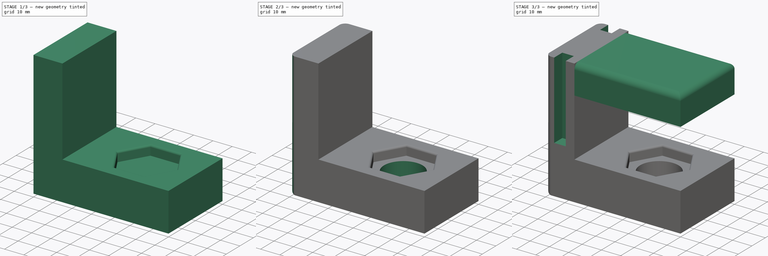
[diagram: build sequence overview — one tinted view per stage of 3, left to right]
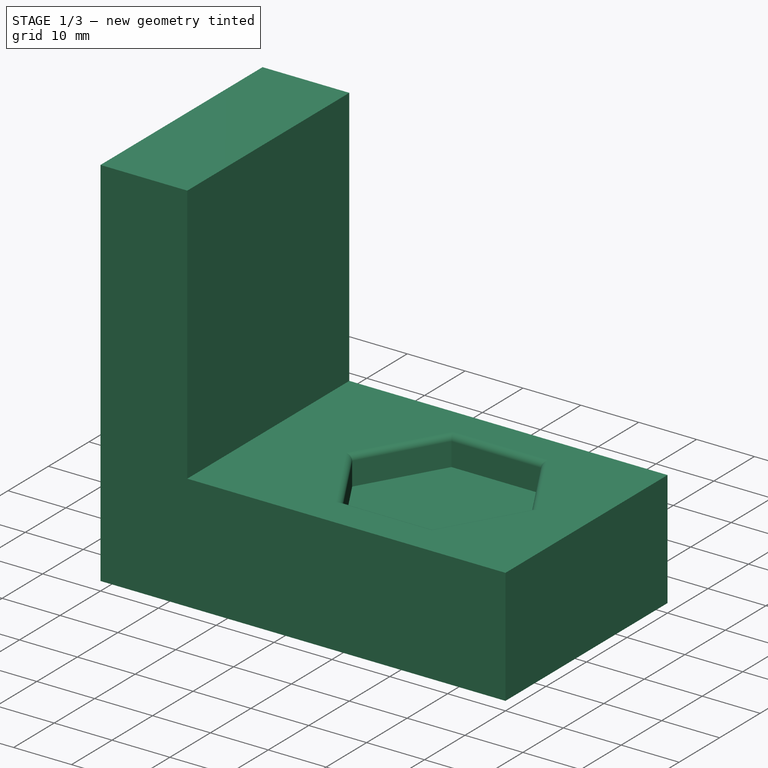
[diagram: stage 1 of 3 — iso view after this stage's code; geometry added in this stage tinted green]
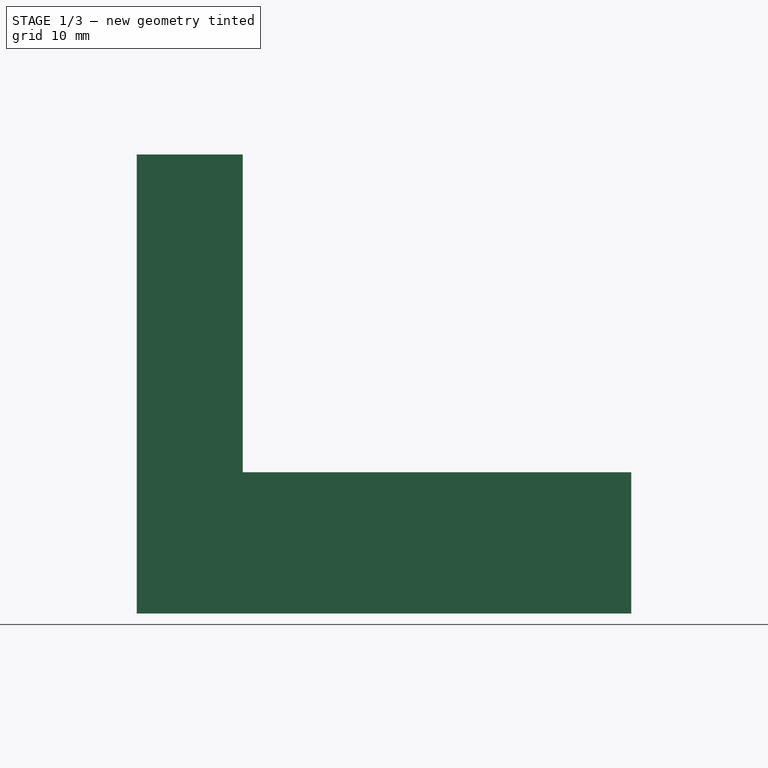
[diagram: stage 1 of 3 — front view after this stage's code; geometry added in this stage tinted green]
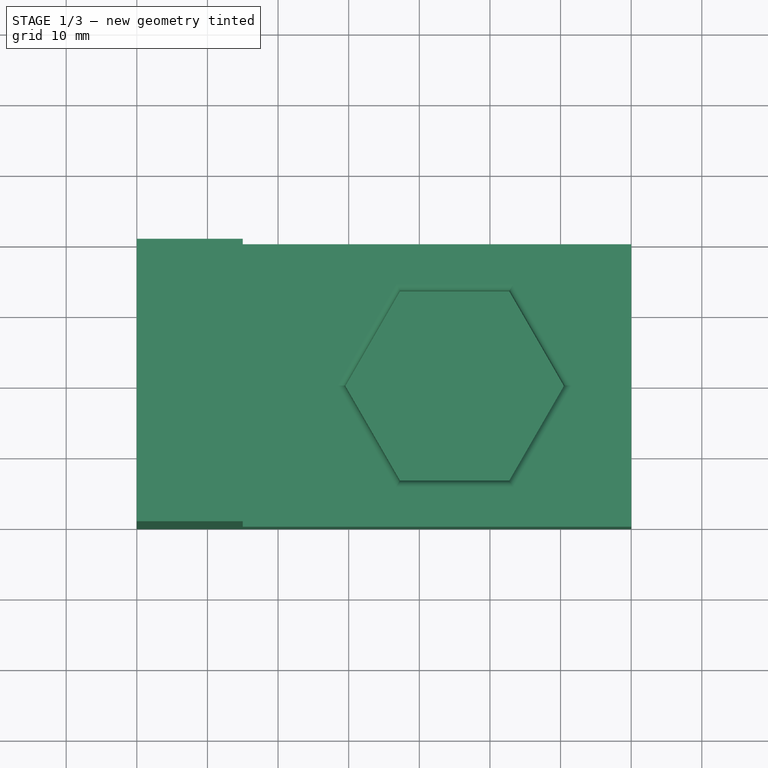
[diagram: stage 1 of 3 — top view after this stage's code; geometry added in this stage tinted green]
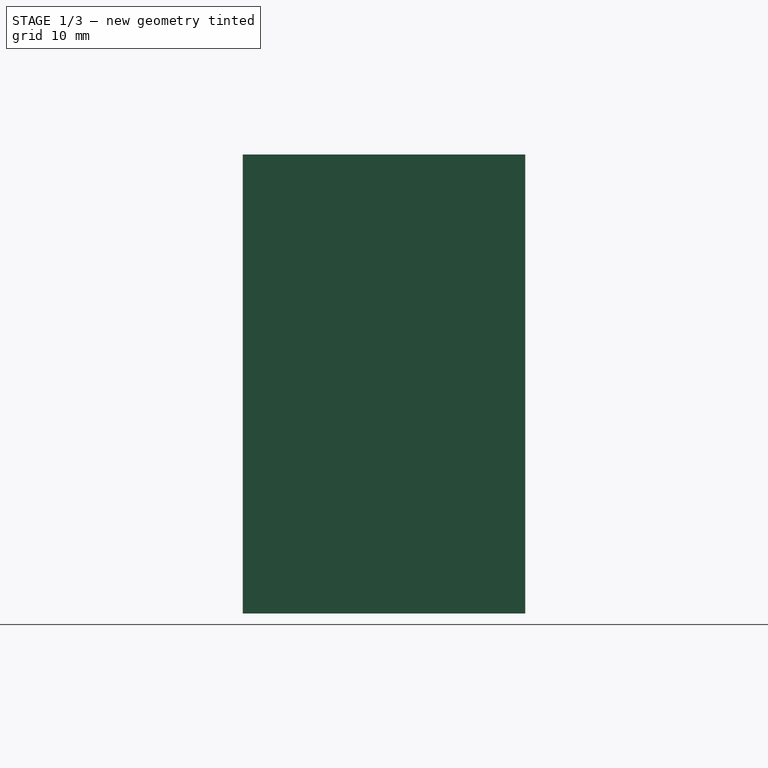
[diagram: stage 1 of 3 — right view after this stage's code; geometry added in this stage tinted green]
FCSTD DOCUMENT  (FreeCAD 1.0R39319 (Git))
Label: universal-desk-clamp
License: All rights reserved
LicenseURL: https://en.wikipedia.org/wiki/All_rights_reserved
objects: Sketcher::SketchObject×5, PartDesign::Pocket×3, PartDesign::Fillet×3, PartDesign::Pad×2, PartDesign::Body×2
note: 36 computed .brp shape members not serialized (recipe doc carries the construction recipe); baked Part::Feature solids carry a one-line shape summary decoded from their .brp

FEATURE [Sketcher::SketchObject] Sketch
  ArcFitTolerance = 1e-06
  AttachmentSupport = -> [XZ_Plane]
  FullyConstrained = false
  MakeInternals = false
  MapMode = 5
  Placement = pos=(0,0,0) rot=(1,0,0;1.5708rad)
  sketch-geometry (10):
    g0: LineSegment StartX=-1.971e-13 StartY=0 StartZ=0 EndX=70 EndY=0 EndZ=0
    g1: LineSegment StartX=70 StartY=0 StartZ=0 EndX=70 EndY=20 EndZ=0
    g2: LineSegment StartX=70 StartY=20 StartZ=0 EndX=15 EndY=20 EndZ=0
    g3: LineSegment StartX=15 StartY=20 StartZ=0 EndX=15 EndY=50 EndZ=0
    g4: LineSegment StartX=15 StartY=50 StartZ=0 EndX=15 EndY=50 EndZ=0
    g5: LineSegment StartX=15 StartY=50 StartZ=0 EndX=15 EndY=44.9999 EndZ=0
    g6: LineSegment StartX=15 StartY=65 StartZ=0 EndX=0 EndY=65 EndZ=0
    g7: LineSegment StartX=0 StartY=65 StartZ=0 EndX=-1.971e-13 EndY=0 EndZ=0
    g8: GeomPoint [constr] X=15 Y=65 Z=0
    g9: LineSegment StartX=15 StartY=65 StartZ=0 EndX=15 EndY=44.9999 EndZ=0
  constraints (27):
    c: Coincident(g-1,g0)
    c: PointOnObject(g0,g-1)
    c: Coincident(g0,g1)
    c: Vertical(g1)
    c: Coincident(g1,g2)
    c: Horizontal(g2)
    c: Coincident(g2,g3)
    c: Vertical(g3)
    c: Coincident(g3,g4)
    c: Horizontal(g4)
    c: Coincident(g4,g5)
    c: Vertical(g5)
    c: PointOnObject(g6,g-2)
    c: Horizontal(g6)
    c: Coincident(g6,g7)
    c: Coincident(g7,g0)
    c: DistanceY(g0,g1) = 20
    c: DistanceY(g4,g8) = 15
    c: DistanceY(g2,g3) = 30
    c: PointOnObject(g8,g5)
    c: PointOnObject(g8,g6)
    c: DistanceX(g0,g2) = 15
    c: DistanceX(g2,g1) = 55
    c: DistanceX(g3,g4) = 0
    c: Coincident(g9,g6)
    c: Coincident(g9,g5)
    c: Vertical(g9)
FEATURE [PartDesign::Pad] Pad
  Direction = (0,-1,2e-16)
  Length = 40
  Length2 = 10
  Placement = pos=(0,0,0) rot=(1,0,0;1.5708rad)
  Profile = -> Sketch
  ReferenceAxis = -> Sketch [N_Axis]
  Refine = true
  Suppressed = false
  Type = 0
FEATURE [Sketcher::SketchObject] Sketch004
  ArcFitTolerance = 1e-06
  AttachmentOffset = pos=(0,0,20) rot=(0,0,1;0rad)
  AttachmentSupport = -> [XY_Plane]
  FullyConstrained = true
  MakeInternals = false
  MapMode = 5
  Placement = pos=(0,0,20) rot=(0,0,1;0rad)
  sketch-geometry (11):
    g0: LineSegment [constr] StartX=0 StartY=0 StartZ=0 EndX=0 EndY=-40 EndZ=0
    g1: LineSegment [constr] StartX=0 StartY=-40 StartZ=0 EndX=70 EndY=-40 EndZ=0
    g2: LineSegment [constr] StartX=70 StartY=-40 StartZ=0 EndX=70 EndY=0 EndZ=0
    g3: LineSegment [constr] StartX=70 StartY=0 StartZ=0 EndX=0 EndY=0 EndZ=0
    g4: LineSegment StartX=29.5 StartY=-20 StartZ=0 EndX=37.25 EndY=-33.4234 EndZ=0
    g5: LineSegment StartX=37.25 StartY=-33.4234 StartZ=0 EndX=52.75 EndY=-33.4234 EndZ=0
    g6: LineSegment StartX=52.75 StartY=-33.4234 StartZ=0 EndX=60.5 EndY=-20 EndZ=0
    g7: LineSegment StartX=60.5 StartY=-20 StartZ=0 EndX=52.75 EndY=-6.57661 EndZ=0
    g8: LineSegment StartX=52.75 StartY=-6.57661 StartZ=0 EndX=37.25 EndY=-6.57661 EndZ=0
    g9: LineSegment StartX=37.25 StartY=-6.57661 StartZ=0 EndX=29.5 EndY=-20 EndZ=0
    g10: Circle [constr] CenterX=45 CenterY=-20 CenterZ=0 NormalX=0 NormalY=0 NormalZ=1 AngleXU=0 Radius=15.5
  constraints (28):
    c: Coincident(g0,g1)
    c: Coincident(g1,g2)
    c: Coincident(g2,g3)
    c: Coincident(g3,g0)
    c: Vertical(g0)
    c: Vertical(g2)
    c: Horizontal(g1)
    c: Horizontal(g3)
    c: Distance(g0,g2) = 70
    c: Distance(g1,g3) = 40
    c: Coincident(g0,g-1)
    c: Coincident(g4,g5)
    c: Coincident(g5,g6)
    c: Coincident(g6,g7)
    c: Coincident(g7,g8)
    c: Coincident(g8,g9)
    c: Coincident(g9,g4)
    c: Equal(g4, g5-g9) x5
    c: PointOnObject(g4,g10)
    c: PointOnObject(g5,g10)
    c: PointOnObject(g6,g10)
    c: PointOnObject(g7,g10)
    c: PointOnObject(g8,g10)
    c: PointOnObject(g9,g10)
    c: Radius(g10) = 15.5
    c: DistanceX(g0,g10) = 45
    c: DistanceY(g4,g0) = 20
    c: DistanceY(g10,g0) = 20
FEATURE [PartDesign::Pocket] Pocket
  BaseFeature = -> Pad
  Direction = (0,0,-1)
  Length = 5
  Length2 = 5
  Placement = pos=(0,0,0) rot=(1,0,0;1.5708rad)
  Profile = -> Sketch004
  ReferenceAxis = -> Sketch004 [N_Axis]
  Refine = true
  Suppressed = false
  Type = 0
FEATURE [PartDesign::Fillet] Fillet001
  Base = -> Pocket [Edge5,Edge6,Edge7,Edge8,Edge9,Edge10]
  BaseFeature = -> Pocket
  Placement = pos=(0,0,0) rot=(1,0,0;1.5708rad)
  Radius = 1
  Refine = true
  SupportTransform = false
  Suppressed = false
  UseAllEdges = false
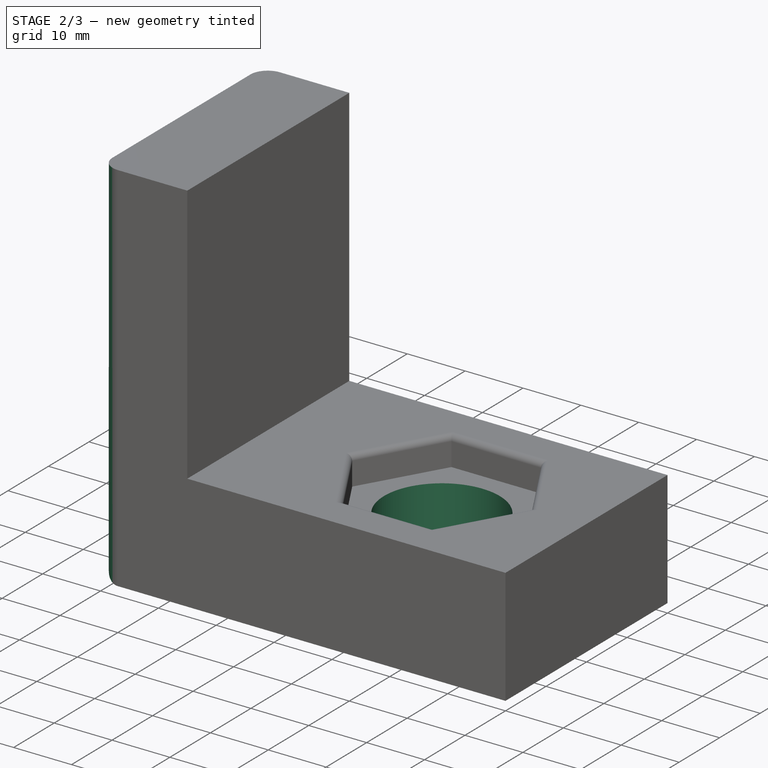
[diagram: stage 2 of 3 — iso view after this stage's code; geometry added in this stage tinted green]
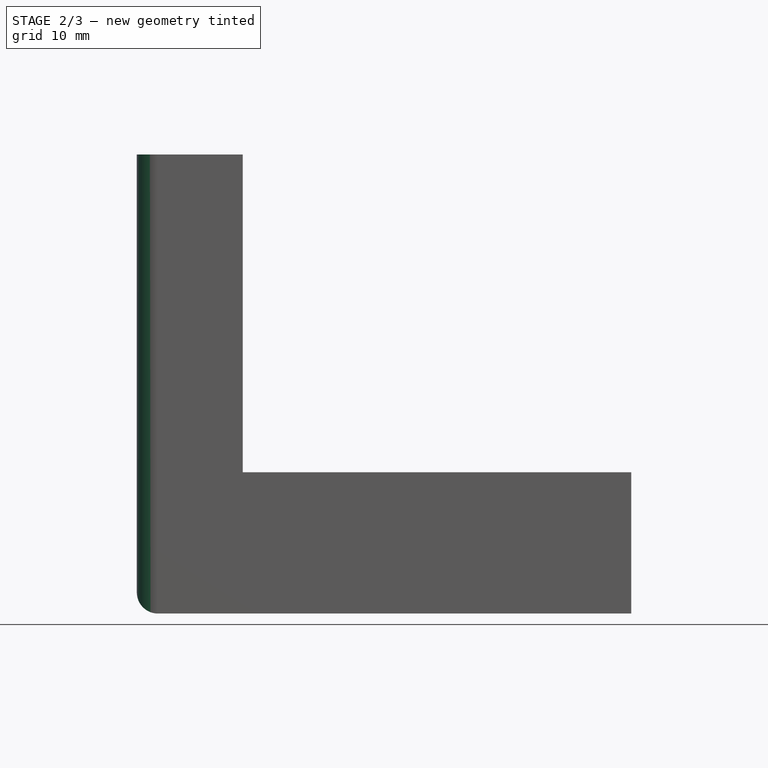
[diagram: stage 2 of 3 — front view after this stage's code; geometry added in this stage tinted green]
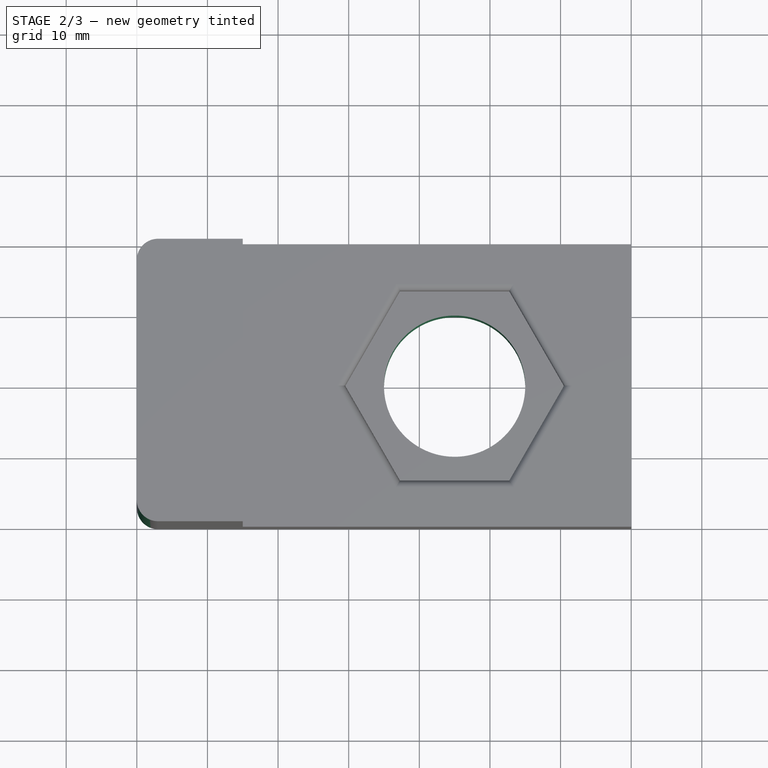
[diagram: stage 2 of 3 — top view after this stage's code; geometry added in this stage tinted green]
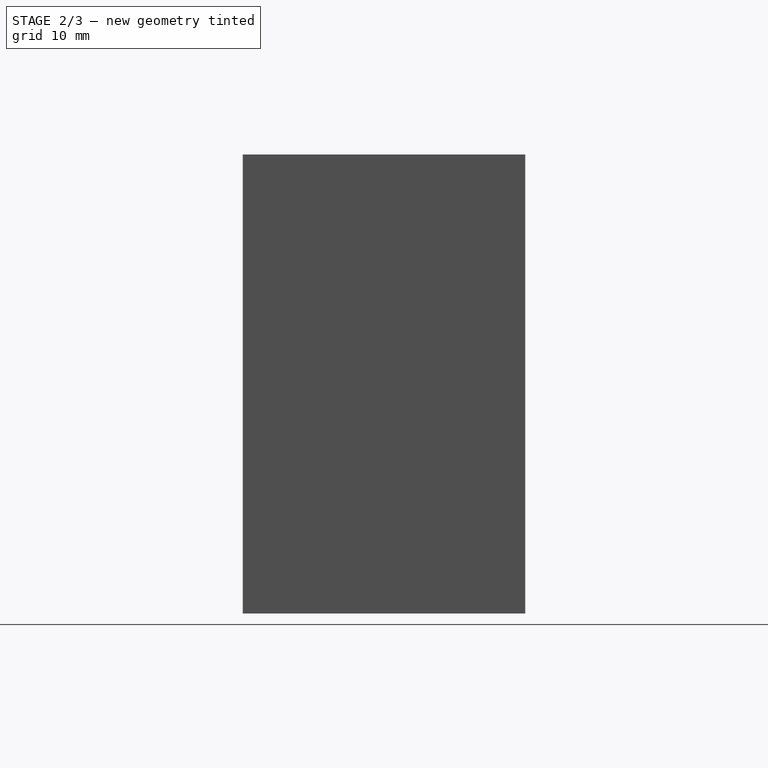
[diagram: stage 2 of 3 — right view after this stage's code; geometry added in this stage tinted green]
FEATURE [Sketcher::SketchObject] Sketch005
  ArcFitTolerance = 1e-06
  AttachmentSupport = -> [XY_Plane]
  FullyConstrained = true
  MakeInternals = false
  MapMode = 5
  sketch-geometry (5):
    g0: LineSegment [constr] StartX=0 StartY=0 StartZ=0 EndX=0 EndY=-40 EndZ=0
    g1: LineSegment [constr] StartX=0 StartY=-40 StartZ=0 EndX=70 EndY=-40 EndZ=0
    g2: LineSegment [constr] StartX=70 StartY=-40 StartZ=0 EndX=70 EndY=0 EndZ=0
    g3: LineSegment [constr] StartX=70 StartY=0 StartZ=0 EndX=0 EndY=0 EndZ=0
    g4: Circle CenterX=45 CenterY=-20 CenterZ=0 NormalX=0 NormalY=0 NormalZ=1 AngleXU=0 Radius=10
  constraints (14):
    c: Coincident(g0,g1)
    c: Coincident(g1,g2)
    c: Coincident(g2,g3)
    c: Coincident(g3,g0)
    c: Vertical(g0)
    c: Vertical(g2)
    c: Horizontal(g1)
    c: Horizontal(g3)
    c: Distance(g0,g2) = 70
    c: Distance(g1,g3) = 40
    c: Coincident(g0,g-1)
    c: Diameter(g4) = 20
    c: DistanceX(g0,g4) = 45
    c: DistanceY(g4,g0) = 20
FEATURE [PartDesign::Pocket] Pocket001
  BaseFeature = -> Fillet001
  Direction = (0,0,-1)
  Length = 20
  Length2 = 5
  Placement = pos=(0,0,0) rot=(1,0,0;1.5708rad)
  Profile = -> Sketch005
  ReferenceAxis = -> Sketch005 [N_Axis]
  Refine = true
  Reversed = true
  Suppressed = false
  Type = 0
FEATURE [PartDesign::Body] Body001
  AllowCompound = false
  Group = -> [Sketch003,Pad002,Fillet]
  Origin = -> Origin001
  Tip = -> Fillet
FEATURE [PartDesign::Fillet] Fillet002
  Base = -> Pocket001 [Edge47,Edge28,Edge32]
  BaseFeature = -> Pocket001
  Placement = pos=(0,0,0) rot=(1,0,0;1.5708rad)
  Radius = 3
  Refine = true
  SupportTransform = false
  Suppressed = false
  UseAllEdges = false
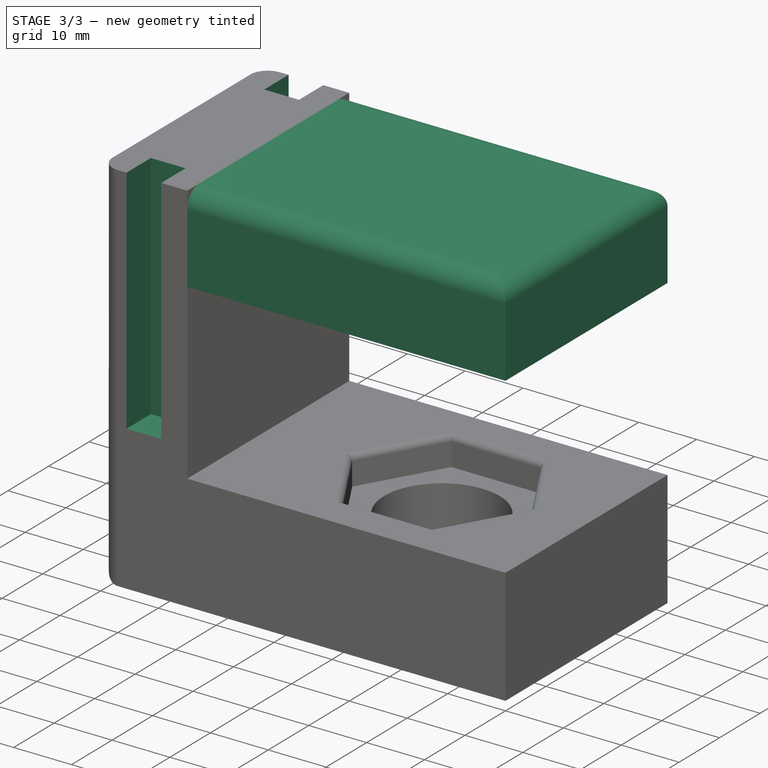
[diagram: stage 3 of 3 — iso view after this stage's code; geometry added in this stage tinted green]
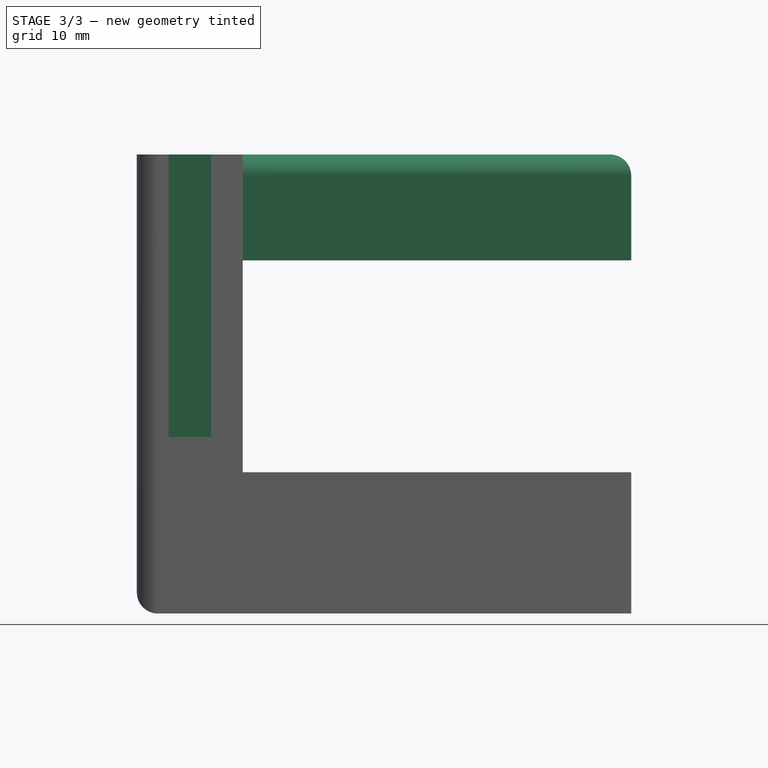
[diagram: stage 3 of 3 — front view after this stage's code; geometry added in this stage tinted green]
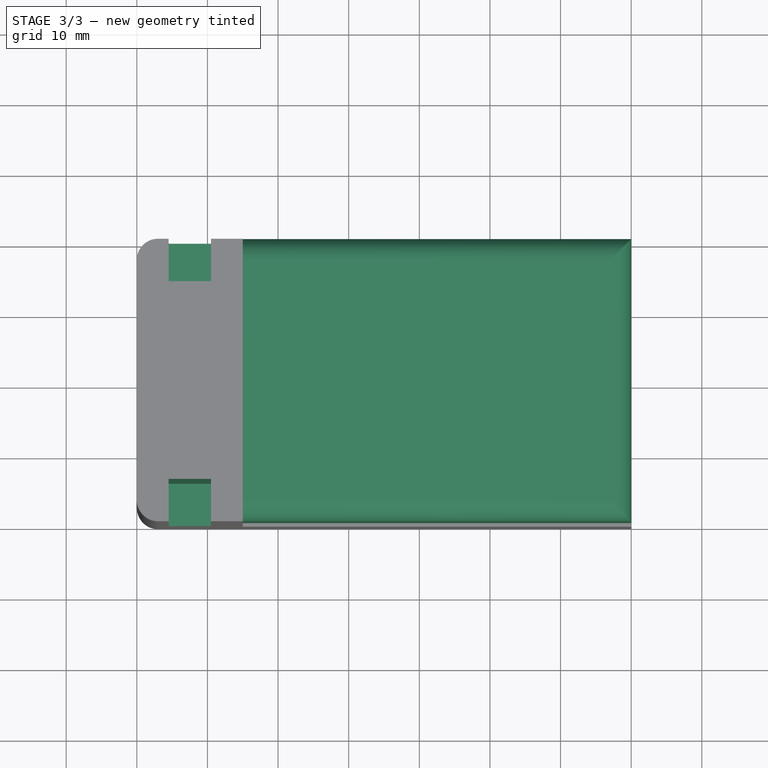
[diagram: stage 3 of 3 — top view after this stage's code; geometry added in this stage tinted green]
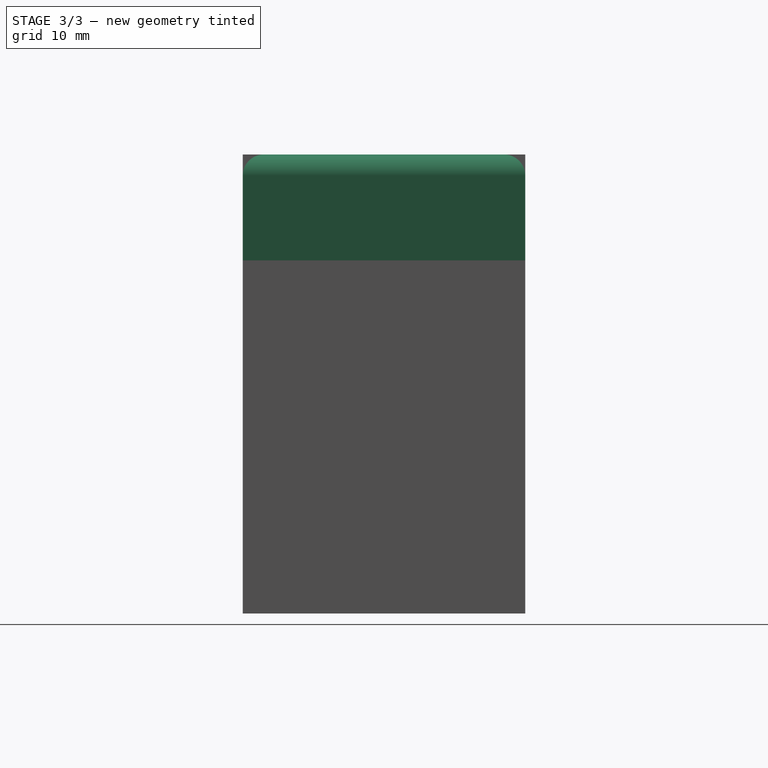
[diagram: stage 3 of 3 — right view after this stage's code; geometry added in this stage tinted green]
FEATURE [Sketcher::SketchObject] Sketch003
  ArcFitTolerance = 1e-06
  AttachmentOffset = pos=(0,0,15) rot=(0,0,1;0rad)
  AttachmentSupport = -> [YZ_Plane001]
  FullyConstrained = true
  MakeInternals = false
  MapMode = 5
  Placement = pos=(15,0,0) rot=(0.57735,0.57735,0.57735;2.0944rad)
  sketch-geometry (4):
    g0: LineSegment StartX=0 StartY=65 StartZ=0 EndX=-40 EndY=65 EndZ=0
    g1: LineSegment StartX=-40 StartY=65 StartZ=0 EndX=-40 EndY=50 EndZ=0
    g2: LineSegment StartX=-40 StartY=50 StartZ=0 EndX=0 EndY=50 EndZ=0
    g3: LineSegment StartX=0 StartY=50 StartZ=0 EndX=0 EndY=65 EndZ=0
  constraints (12):
    c: Coincident(g0,g1)
    c: Coincident(g1,g2)
    c: Coincident(g2,g3)
    c: Coincident(g3,g0)
    c: Horizontal(g0)
    c: Horizontal(g2)
    c: Vertical(g1)
    c: Vertical(g3)
    c: Distance(g1,g3) = 40
    c: Distance(g0,g2) = 15
    c: PointOnObject(g0,g-2)
    c: DistanceY(g-1,g2) = 50
FEATURE [PartDesign::Pad] Pad002
  Direction = (1,0,0)
  Length = 55
  Length2 = 10
  Placement = pos=(0,0,0) rot=(1,1,1;2.0944rad)
  Profile = -> Sketch003
  ReferenceAxis = -> Sketch003 [N_Axis]
  Refine = true
  Suppressed = false
  Type = 0
FEATURE [PartDesign::Fillet] Fillet
  Base = -> Pad002 [Edge4,Edge1,Edge2]
  BaseFeature = -> Pad002
  Placement = pos=(0,0,0) rot=(1,1,1;2.0944rad)
  Radius = 3
  Refine = true
  SupportTransform = false
  Suppressed = false
  UseAllEdges = false
FEATURE [Sketcher::SketchObject] Sketch006
  ArcFitTolerance = 1e-06
  AttachmentOffset = pos=(0,0,70) rot=(0,0,1;0rad)
  AttachmentSupport = -> [XY_Plane]
  FullyConstrained = true
  MakeInternals = false
  MapMode = 5
  Placement = pos=(0,0,70) rot=(0,0,1;0rad)
  sketch-geometry (12):
    g0: LineSegment [constr] StartX=0 StartY=0 StartZ=0 EndX=0 EndY=-40 EndZ=0
    g1: LineSegment [constr] StartX=0 StartY=-40 StartZ=0 EndX=70 EndY=-40 EndZ=0
    g2: LineSegment [constr] StartX=70 StartY=-40 StartZ=0 EndX=70 EndY=0 EndZ=0
    g3: LineSegment [constr] StartX=70 StartY=0 StartZ=0 EndX=0 EndY=0 EndZ=0
    g4: LineSegment StartX=4.5 StartY=4 StartZ=0 EndX=4.5 EndY=-6 EndZ=0
    g5: LineSegment StartX=4.5 StartY=-6 StartZ=0 EndX=10.5 EndY=-6 EndZ=0
    g6: LineSegment StartX=10.5 StartY=-6 StartZ=0 EndX=10.5 EndY=4 EndZ=0
    g7: LineSegment StartX=10.5 StartY=4 StartZ=0 EndX=4.5 EndY=4 EndZ=0
    g8: LineSegment StartX=4.5 StartY=-34 StartZ=0 EndX=4.5 EndY=-44 EndZ=0
    g9: LineSegment StartX=4.5 StartY=-44 StartZ=0 EndX=10.5 EndY=-44 EndZ=0
    g10: LineSegment StartX=10.5 StartY=-44 StartZ=0 EndX=10.5 EndY=-34 EndZ=0
    g11: LineSegment StartX=10.5 StartY=-34 StartZ=0 EndX=4.5 EndY=-34 EndZ=0
  constraints (35):
    c: Coincident(g0,g1)
    c: Coincident(g1,g2)
    c: Coincident(g2,g3)
    c: Coincident(g3,g0)
    c: Vertical(g0)
    c: Vertical(g2)
    c: Horizontal(g1)
    c: Horizontal(g3)
    c: Distance(g0,g2) = 70
    c: Distance(g1,g3) = 40
    c: Coincident(g0,g-1)
    c: Coincident(g4,g5)
    c: Coincident(g5,g6)
    c: Coincident(g6,g7)
    c: Coincident(g7,g4)
    c: Vertical(g4)
    c: Vertical(g6)
    c: Horizontal(g5)
    c: Horizontal(g7)
    c: Coincident(g8,g9)
    c: Coincident(g9,g10)
    c: Coincident(g10,g11)
    c: Coincident(g11,g8)
    c: Vertical(g8)
    c: Vertical(g10)
    c: Horizontal(g9)
    c: Horizontal(g11)
    c: DistanceX(g0,g4) = 4.5
    c: DistanceX(g0,g8) = 4.5
    c: DistanceX(g8,g10) = 6
    c: DistanceX(g4,g5) = 6
    c: DistanceY(g5,g6) = 10
    c: DistanceY(g9,g10) = 10
    c: DistanceY(g4,g0) = 6
    c: DistanceY(g0,g8) = 6
FEATURE [PartDesign::Pocket] Pocket002
  BaseFeature = -> Fillet002
  Direction = (0,0,-1)
  Length = 45
  Length2 = 5
  Placement = pos=(0,0,0) rot=(1,0,0;1.5708rad)
  Profile = -> Sketch006
  ReferenceAxis = -> Sketch006 [N_Axis]
  Refine = true
  Suppressed = false
  Type = 0
FEATURE [PartDesign::Body] Body
  AllowCompound = false
  Group = -> [Sketch,Pad,Sketch004,Pocket,Fillet001,Sketch005,Pocket001,Fillet002,Sketch006,Pocket002]
  Origin = -> Origin
  Tip = -> Pocket002
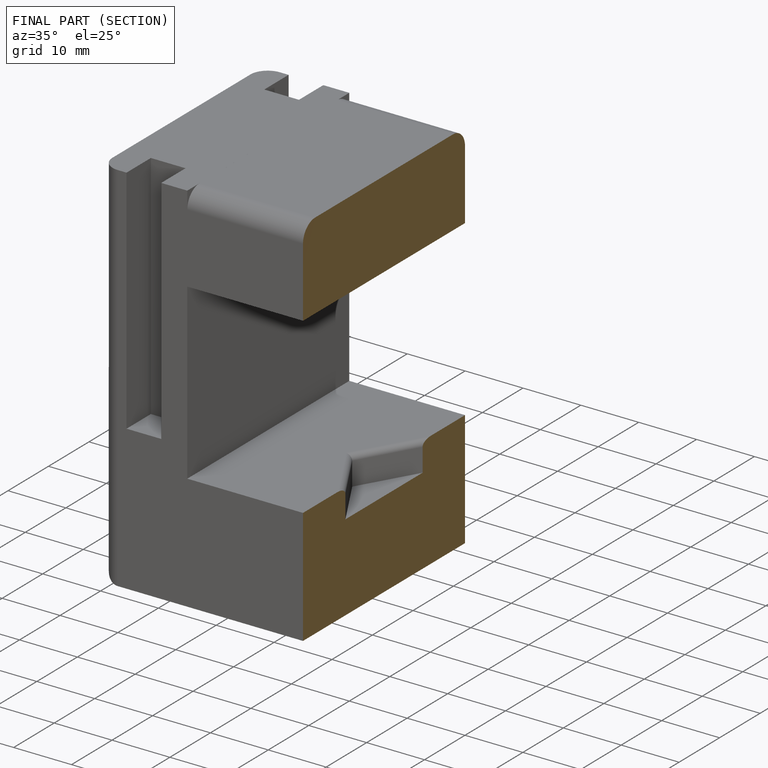
[diagram: finished part — half-section view (interior)]
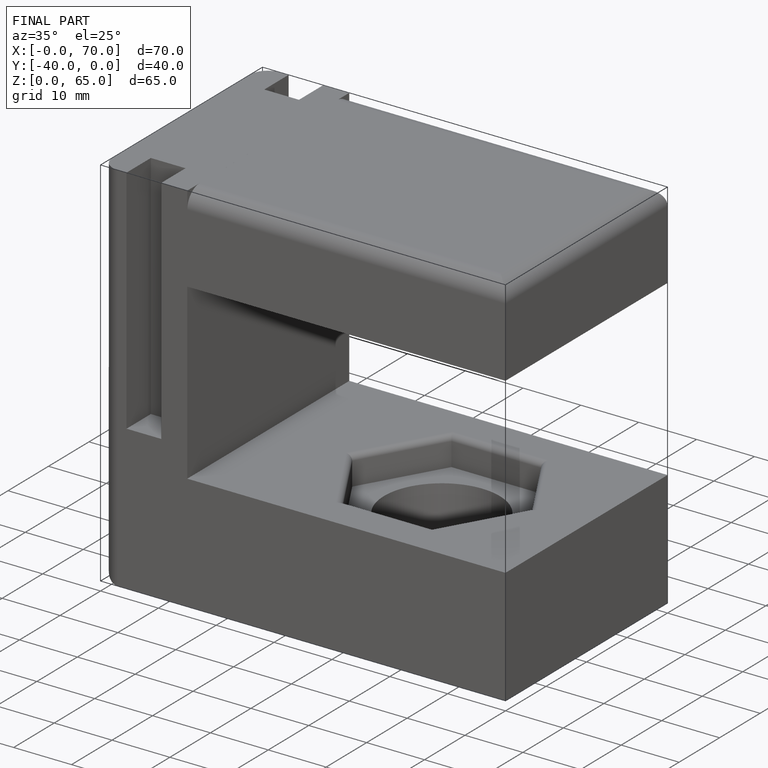
[diagram: finished part — iso view with bounding-box wireframe]
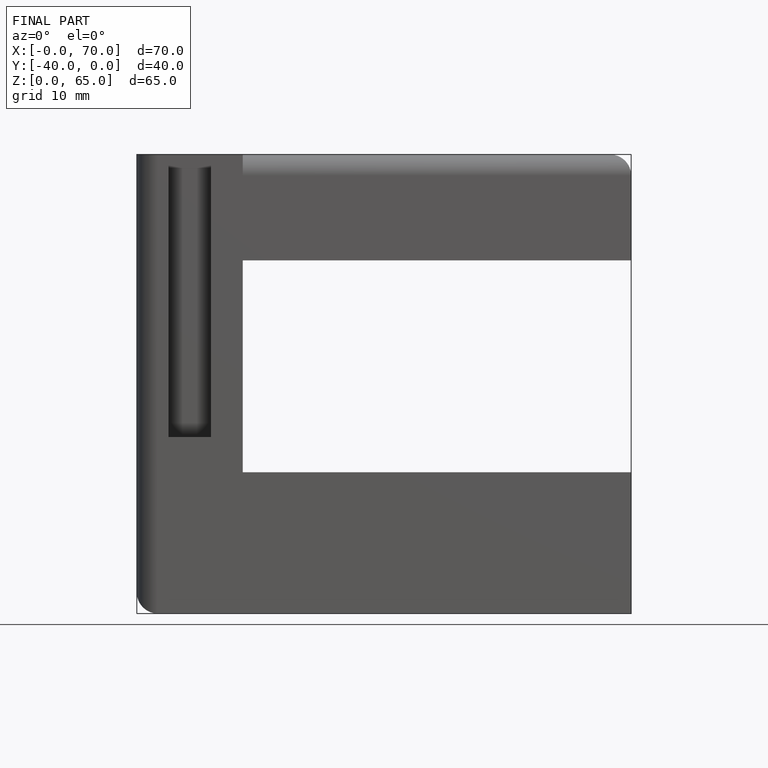
[diagram: finished part — front view with bounding-box wireframe]
